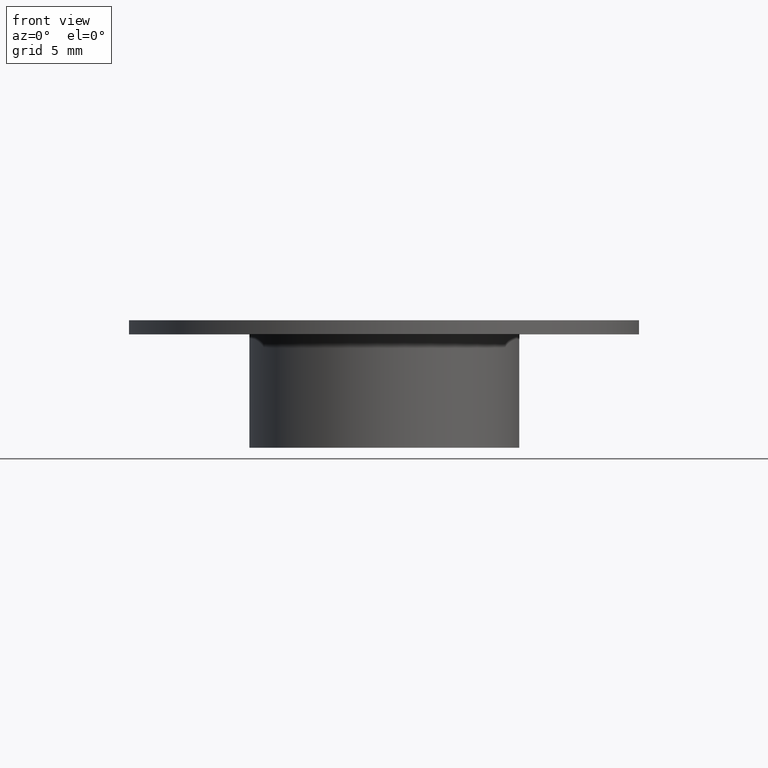
[diagram: clean part render]
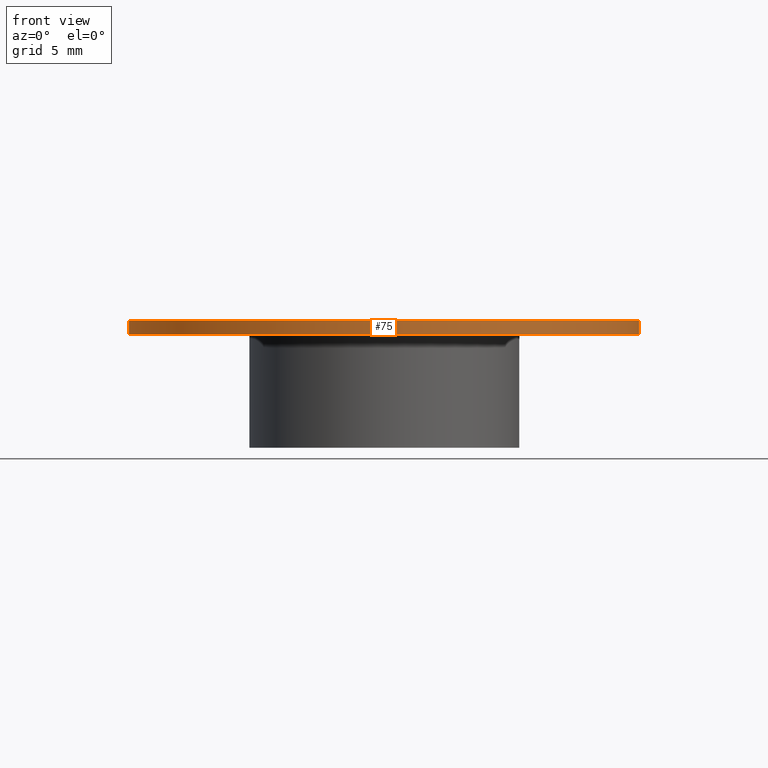
[diagram: same view with one face highlighted and labeled with its STEP entity id]
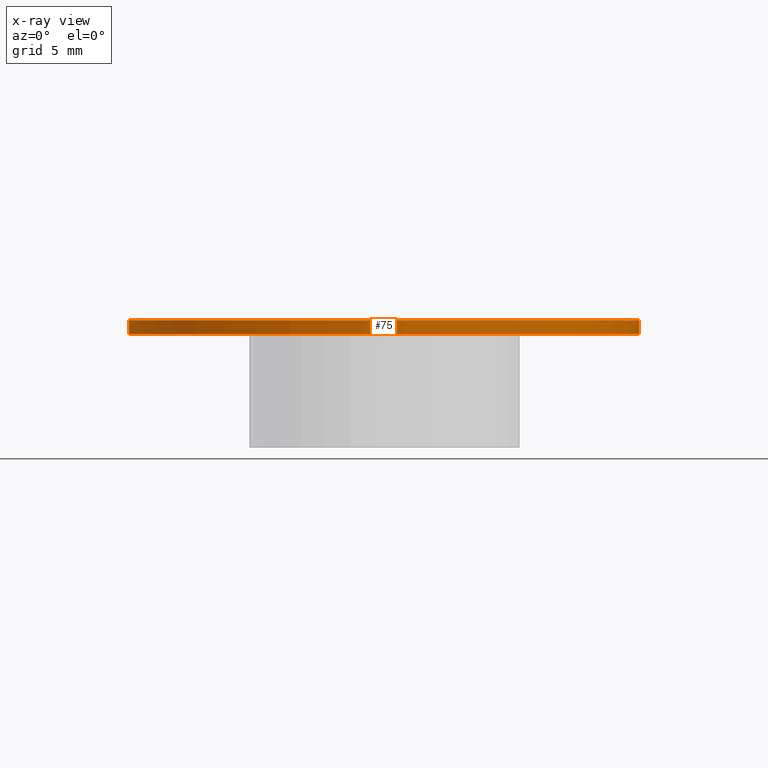
[diagram: x-ray of the same camera — body ghosted, the highlighted face saturated]
A machine part, front view. The second image highlights one B-rep face of the part: STEP entity #75.
The next image is the same camera in x-ray: the body ghosted, the highlighted face saturated — about 0% of this face is hidden behind the body in this view.
In plain terms, the highlighted cylindrical surface (bore or boss wall) has radius 18 mm, axis along (0, 0, -1).
Its self-contained STEP definition (entity closure, byte-faithful):
#75 = ADVANCED_FACE( '', ( #84, #85 ), #86, .T. );
#84 = FACE_OUTER_BOUND( '', #106, .T. );
#85 = FACE_OUTER_BOUND( '', #107, .T. );
#86 = CYLINDRICAL_SURFACE( '', #108, 18.0000000000000 );
#106 = EDGE_LOOP( '', ( #128 ) );
#107 = EDGE_LOOP( '', ( #129 ) );
#108 = AXIS2_PLACEMENT_3D( '', #130, #131, #132 );
#128 = ORIENTED_EDGE( '', *, *, #166, .F. );
#129 = ORIENTED_EDGE( '', *, *, #167, .T. );
#130 = CARTESIAN_POINT( '', ( -9.67439019519678E-015, 0.000000000000000, 158.000000000000 ) );
#131 = DIRECTION( '', ( 6.12303176911189E-017, 0.000000000000000, -1.00000000000000 ) );
#132 = DIRECTION( '', ( 1.00000000000000, 0.000000000000000, 6.12303176911189E-017 ) );
#166 = EDGE_CURVE( '', #173, #173, #174, .T. );
#167 = EDGE_CURVE( '', #175, #175, #176, .T. );
#173 = VERTEX_POINT( '', #187 );
#174 = CIRCLE( '', #188, 18.0000000000000 );
#175 = VERTEX_POINT( '', #189 );
#176 = CIRCLE( '', #190, 18.0000000000000 );
#187 = CARTESIAN_POINT( '', ( 18.0000000000000, 0.000000000000000, 9.00000000000000 ) );
#188 = AXIS2_PLACEMENT_3D( '', #201, #202, #203 );
#189 = CARTESIAN_POINT( '', ( 18.0000000000000, 0.000000000000000, 8.00000000000000 ) );
#190 = AXIS2_PLACEMENT_3D( '', #204, #205, #206 );
#201 = CARTESIAN_POINT( '', ( -5.51072859220070E-016, 0.000000000000000, 9.00000000000000 ) );
#202 = DIRECTION( '', ( -6.12303176911189E-017, 0.000000000000000, 1.00000000000000 ) );
#203 = DIRECTION( '', ( 1.00000000000000, 0.000000000000000, 6.12303176911189E-017 ) );
#204 = CARTESIAN_POINT( '', ( -4.89842541528951E-016, 0.000000000000000, 8.00000000000000 ) );
#205 = DIRECTION( '', ( -6.12303176911189E-017, 0.000000000000000, 1.00000000000000 ) );
#206 = DIRECTION( '', ( 1.00000000000000, 0.000000000000000, 6.12303176911189E-017 ) );